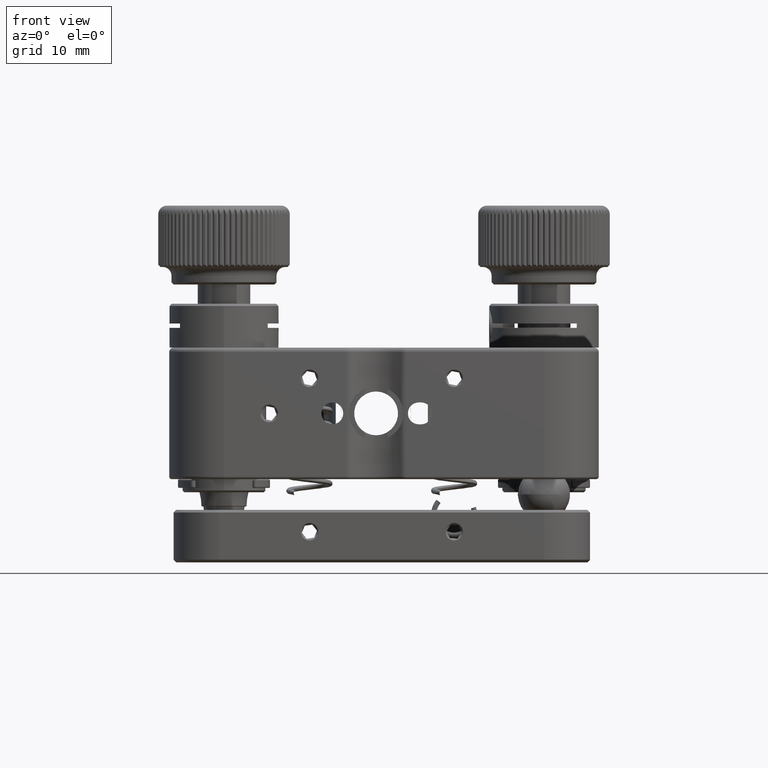
[diagram: clean part render]
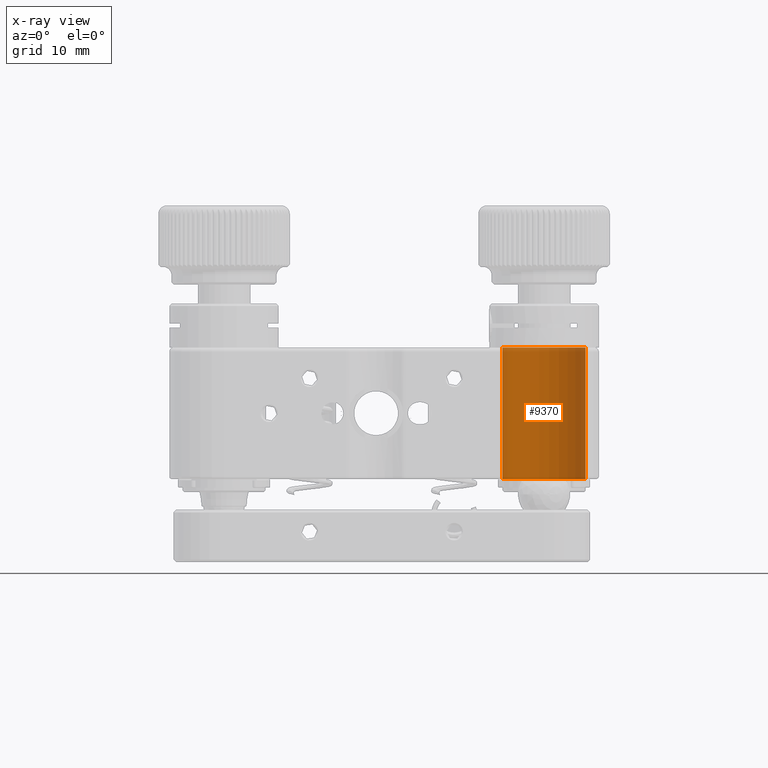
[diagram: x-ray — body ghosted, one internal face saturated and labeled with its STEP entity id]
A machine part, front view, then the same camera in x-ray: the body is ghosted and one INTERNAL B-rep face — a face not visible from any outside direction — is saturated and labeled: STEP entity #9370.
In plain terms, the highlighted cylindrical surface (partial cylindrical patch) has radius 4.75 mm, axis along (-0, 0, -1).
Its self-contained STEP definition (entity closure, byte-faithful):
#595 = VECTOR ( 'NONE', #43961, 1000.000000000000000 ) ;
#2927 = DIRECTION ( 'NONE',  ( -1.774750517403712682E-32, 3.949628969160787774E-32, -1.000000000000000000 ) ) ;
#3233 = CYLINDRICAL_SURFACE ( 'NONE', #10831, 4.750000000000000000 ) ;
#5583 = CARTESIAN_POINT ( 'NONE',  ( 13.50003663557870048, 18.26865574055246100, -7.500000000000000000 ) ) ;
#6346 = DIRECTION ( 'NONE',  ( -0.9999922872465877299, 0.003927524326836395567, 0.000000000000000000 ) ) ;
#7302 = CARTESIAN_POINT ( 'NONE',  ( 22.99996336442128353, 18.23134425944751413, -9.000000000000001776 ) ) ;
#7706 = CARTESIAN_POINT ( 'NONE',  ( 18.24999999999999289, 18.24999999999998934, -9.000000000000001776 ) ) ;
#9370 = ADVANCED_FACE ( 'NONE', ( #52742 ), #3233, .T. ) ;
#10831 = AXIS2_PLACEMENT_3D ( 'NONE', #7706, #25893, #48286 ) ;
#11435 = CARTESIAN_POINT ( 'NONE',  ( 13.50003663557870048, 18.26865574055246100, 7.499905258841164546 ) ) ;
#11767 = LINE ( 'NONE', #7302, #595 ) ;
#14604 = CIRCLE ( 'NONE', #22265, 4.750000000000000000 ) ;
#18064 = EDGE_CURVE ( 'NONE', #46186, #29622, #31011, .T. ) ;
#22265 = AXIS2_PLACEMENT_3D ( 'NONE', #33211, #2927, #51323 ) ;
#24289 = AXIS2_PLACEMENT_3D ( 'NONE', #41571, #33252, #6346 ) ;
#25829 = CARTESIAN_POINT ( 'NONE',  ( 22.99996336442128353, 18.23134425944751413, -7.500000000000000000 ) ) ;
#25893 = DIRECTION ( 'NONE',  ( -1.774750517403712682E-32, 3.949628969160787774E-32, -1.000000000000000000 ) ) ;
#26507 = DIRECTION ( 'NONE',  ( -1.774750517403712682E-32, 3.949628969160787774E-32, -1.000000000000000000 ) ) ;
#27583 = CARTESIAN_POINT ( 'NONE',  ( 22.99996336442128353, 18.23134425944751413, 7.499905258841164546 ) ) ;
#28075 = EDGE_CURVE ( 'NONE', #43823, #43518, #11767, .T. ) ;
#29622 = VERTEX_POINT ( 'NONE', #5583 ) ;
#31011 = LINE ( 'NONE', #49147, #42794 ) ;
#33211 = CARTESIAN_POINT ( 'NONE',  ( 18.24999999999999289, 18.24999999999998934, 7.499905258841164546 ) ) ;
#33252 = DIRECTION ( 'NONE',  ( -1.774750517403712682E-32, 3.949628969160787774E-32, -1.000000000000000000 ) ) ;
#35960 = ORIENTED_EDGE ( 'NONE', *, *, #54481, .T. ) ;
#38007 = ORIENTED_EDGE ( 'NONE', *, *, #55225, .F. ) ;
#41571 = CARTESIAN_POINT ( 'NONE',  ( 18.24999999999999289, 18.24999999999998934, -7.500000000000000000 ) ) ;
#42116 = ORIENTED_EDGE ( 'NONE', *, *, #18064, .F. ) ;
#42794 = VECTOR ( 'NONE', #26507, 1000.000000000000000 ) ;
#43518 = VERTEX_POINT ( 'NONE', #25829 ) ;
#43823 = VERTEX_POINT ( 'NONE', #27583 ) ;
#43961 = DIRECTION ( 'NONE',  ( -1.774750517403712682E-32, 3.949628969160787774E-32, -1.000000000000000000 ) ) ;
#44792 = EDGE_LOOP ( 'NONE', ( #35960, #49208, #38007, #42116 ) ) ;
#46186 = VERTEX_POINT ( 'NONE', #11435 ) ;
#48286 = DIRECTION ( 'NONE',  ( -0.9999922872465877299, 0.003927524326836395567, 0.000000000000000000 ) ) ;
#49147 = CARTESIAN_POINT ( 'NONE',  ( 13.50003663557870048, 18.26865574055246100, -9.000000000000001776 ) ) ;
#49208 = ORIENTED_EDGE ( 'NONE', *, *, #28075, .T. ) ;
#49988 = CIRCLE ( 'NONE', #24289, 4.750000000000000000 ) ;
#51323 = DIRECTION ( 'NONE',  ( -0.9999922872465877299, 0.003927524326836395567, 0.000000000000000000 ) ) ;
#52742 = FACE_OUTER_BOUND ( 'NONE', #44792, .T. ) ;
#54481 = EDGE_CURVE ( 'NONE', #46186, #43823, #14604, .T. ) ;
#55225 = EDGE_CURVE ( 'NONE', #29622, #43518, #49988, .T. ) ;